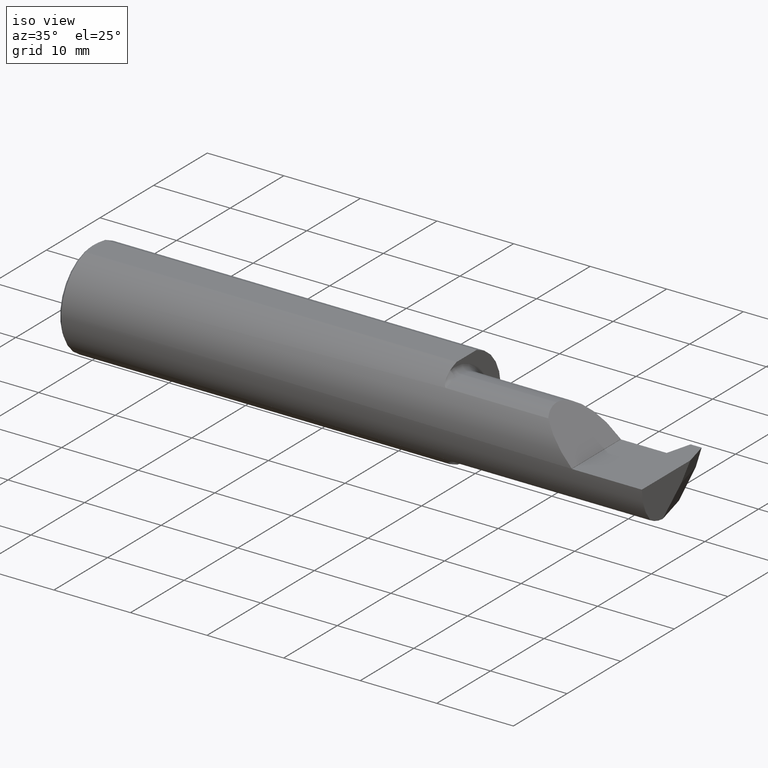
[diagram: clean part render]
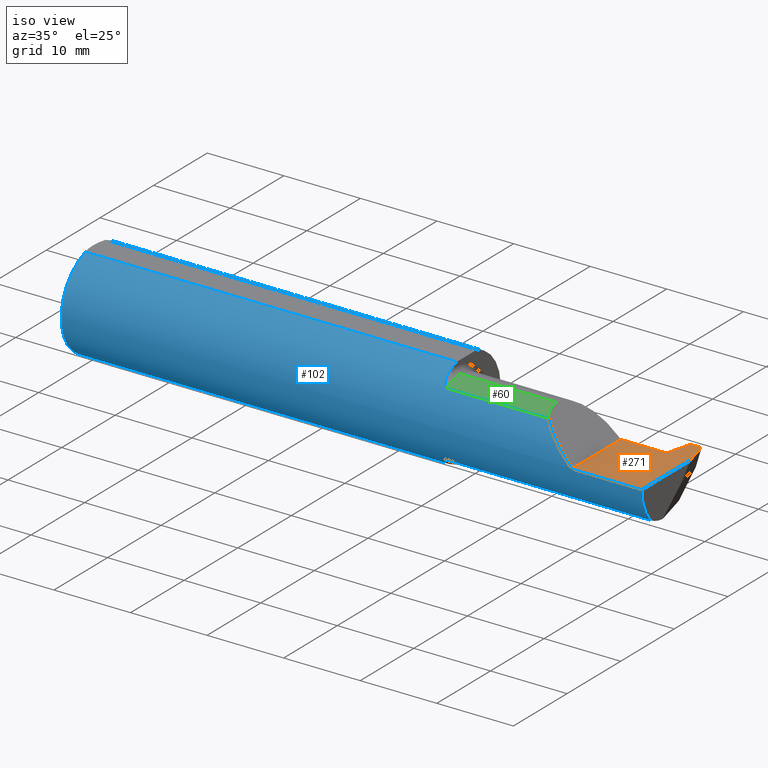
[diagram: same view with three faces highlighted in distinct colors, each labeled with its STEP entity id]
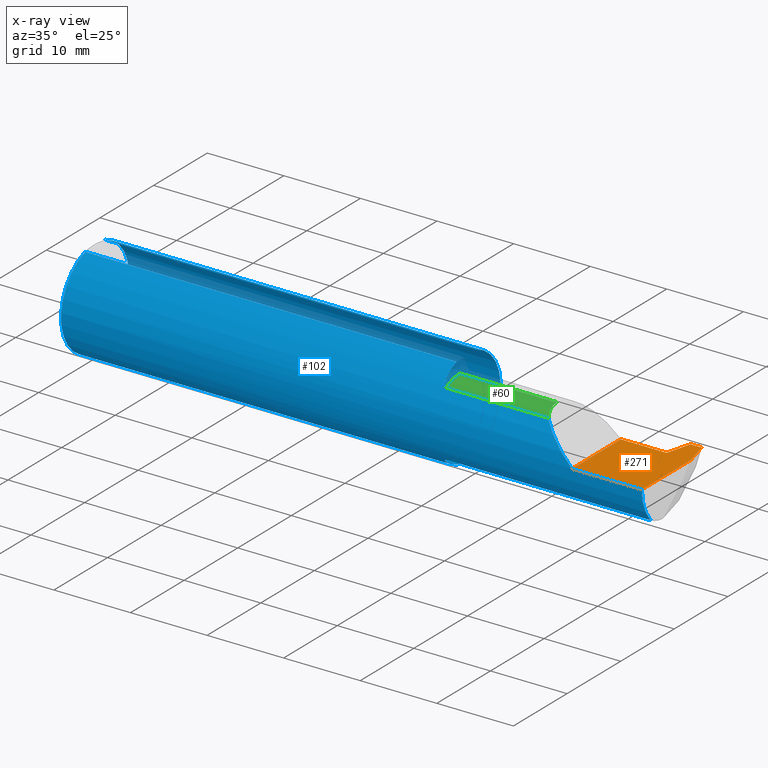
[diagram: x-ray of the same camera — body ghosted, the three highlighted faces saturated]
A machine part, iso view with three faces highlighted in distinct colors.
The next image is the same camera in x-ray (body ghosted, the three faces saturated) — at least one of them is partly hidden behind the body in this view.
Their STEP definitions:

[orange] entity #271 — the highlighted planar face has unit normal (-0, 0, -1).
#2 = LINE ( 'NONE', #690, #64 ) ;
#22 = DIRECTION ( 'NONE',  ( 1.000000000000000000, 8.537024980200913523E-16, -0.000000000000000000 ) ) ;
#26 = CARTESIAN_POINT ( 'NONE',  ( 3.000000000000000444, 0.2999999999999999889, -6.123031769111886291E-17 ) ) ;
#27 = ORIENTED_EDGE ( 'NONE', *, *, #268, .F. ) ;
#40 = VERTEX_POINT ( 'NONE', #908 ) ;
#41 = CARTESIAN_POINT ( 'NONE',  ( 2.909103411012277540, 0.2381499999999800443, -6.123031769111886291E-17 ) ) ;
#64 = VECTOR ( 'NONE', #313, 39.37007874015748143 ) ;
#89 = EDGE_CURVE ( 'NONE', #326, #483, #131, .T. ) ;
#94 = AXIS2_PLACEMENT_3D ( 'NONE', #504, #425, #805 ) ;
#116 = VECTOR ( 'NONE', #809, 39.37007874015748143 ) ;
#126 = CARTESIAN_POINT ( 'NONE',  ( 2.640000000000000124, 0.1101499999999999563, -6.123031769111885058E-17 ) ) ;
#131 = LINE ( 'NONE', #285, #971 ) ;
#168 = VERTEX_POINT ( 'NONE', #548 ) ;
#177 = ORIENTED_EDGE ( 'NONE', *, *, #812, .T. ) ;
#207 = LINE ( 'NONE', #676, #116 ) ;
#243 = EDGE_CURVE ( 'NONE', #168, #326, #2, .T. ) ;
#265 = DIRECTION ( 'NONE',  ( 1.000000000000000000, 0.000000000000000000, 0.000000000000000000 ) ) ;
#268 = EDGE_CURVE ( 'NONE', #695, #40, #341, .T. ) ;
#271 = ADVANCED_FACE ( 'NONE', ( #946 ), #883, .F. ) ;
#279 = CARTESIAN_POINT ( 'NONE',  ( 2.640000000000000124, -0.2498499999999999610, -6.123031769111885058E-17 ) ) ;
#285 = CARTESIAN_POINT ( 'NONE',  ( 2.640000000000000124, 0.2999999999999999889, -6.123031769111886291E-17 ) ) ;
#298 = DIRECTION ( 'NONE',  ( 0.2503800040544357230, -0.9681476403781091866, 0.000000000000000000 ) ) ;
#303 = ORIENTED_EDGE ( 'NONE', *, *, #89, .F. ) ;
#313 = DIRECTION ( 'NONE',  ( -1.000000000000000000, -0.000000000000000000, -0.000000000000000000 ) ) ;
#326 = VERTEX_POINT ( 'NONE', #279 ) ;
#336 = VECTOR ( 'NONE', #265, 39.37007874015748143 ) ;
#341 = LINE ( 'NONE', #787, #448 ) ;
#342 = EDGE_CURVE ( 'NONE', #650, #344, #585, .T. ) ;
#344 = VERTEX_POINT ( 'NONE', #41 ) ;
#345 = EDGE_CURVE ( 'NONE', #483, #695, #406, .T. ) ;
#406 = LINE ( 'NONE', #708, #336 ) ;
#425 = DIRECTION ( 'NONE',  ( -0.000000000000000000, 0.000000000000000000, -1.000000000000000000 ) ) ;
#445 = EDGE_CURVE ( 'NONE', #40, #344, #207, .T. ) ;
#448 = VECTOR ( 'NONE', #22, 39.37007874015748143 ) ;
#457 = EDGE_LOOP ( 'NONE', ( #871, #477, #27, #614, #303, #811, #177, #652 ) ) ;
#477 = ORIENTED_EDGE ( 'NONE', *, *, #445, .F. ) ;
#483 = VERTEX_POINT ( 'NONE', #126 ) ;
#487 = EDGE_CURVE ( 'NONE', #650, #510, #672, .T. ) ;
#504 = CARTESIAN_POINT ( 'NONE',  ( 2.640000000000000124, 0.2999999999999999889, -6.123031769111886291E-17 ) ) ;
#510 = VERTEX_POINT ( 'NONE', #962 ) ;
#548 = CARTESIAN_POINT ( 'NONE',  ( 3.000000000000000444, -0.2498499999999999055, -6.123031769111886291E-17 ) ) ;
#585 = LINE ( 'NONE', #951, #687 ) ;
#614 = ORIENTED_EDGE ( 'NONE', *, *, #345, .F. ) ;
#650 = VERTEX_POINT ( 'NONE', #793 ) ;
#652 = ORIENTED_EDGE ( 'NONE', *, *, #487, .F. ) ;
#664 = CARTESIAN_POINT ( 'NONE',  ( 2.963000000000000078, 0.2501499999999999280, 0.000000000000000000 ) ) ;
#672 = LINE ( 'NONE', #664, #764 ) ;
#676 = CARTESIAN_POINT ( 'NONE',  ( 2.912206822024553166, 0.2501499999999999280, 0.000000000000000000 ) ) ;
#687 = VECTOR ( 'NONE', #799, 39.37007874015748143 ) ;
#689 = VECTOR ( 'NONE', #873, 39.37007874015748143 ) ;
#690 = CARTESIAN_POINT ( 'NONE',  ( 3.000000000000000444, -0.2498499999999999610, -6.123031769111886291E-17 ) ) ;
#695 = VERTEX_POINT ( 'NONE', #934 ) ;
#702 = LINE ( 'NONE', #26, #689 ) ;
#708 = CARTESIAN_POINT ( 'NONE',  ( 1.925000000000000266, 0.1101499999999999840, -6.123031769111886291E-17 ) ) ;
#764 = VECTOR ( 'NONE', #298, 39.37007874015748143 ) ;
#787 = CARTESIAN_POINT ( 'NONE',  ( 2.876000360214729490, 0.1101499999999999702, 0.000000000000000000 ) ) ;
#793 = CARTESIAN_POINT ( 'NONE',  ( 2.966103411012276148, 0.2381499999999774630, 0.000000000000000000 ) ) ;
#799 = DIRECTION ( 'NONE',  ( -1.000000000000000000, 4.572984814418714441E-14, 0.000000000000000000 ) ) ;
#805 = DIRECTION ( 'NONE',  ( -1.000000000000000000, 0.000000000000000000, 0.000000000000000000 ) ) ;
#809 = DIRECTION ( 'NONE',  ( 0.2503800040544345573, 0.9681476403781096307, -0.000000000000000000 ) ) ;
#811 = ORIENTED_EDGE ( 'NONE', *, *, #243, .F. ) ;
#812 = EDGE_CURVE ( 'NONE', #168, #510, #702, .T. ) ;
#871 = ORIENTED_EDGE ( 'NONE', *, *, #342, .T. ) ;
#873 = DIRECTION ( 'NONE',  ( -0.000000000000000000, 1.000000000000000000, -0.000000000000000000 ) ) ;
#883 = PLANE ( 'NONE',  #94 ) ;
#899 = DIRECTION ( 'NONE',  ( -0.000000000000000000, 1.000000000000000000, -0.000000000000000000 ) ) ;
#908 = CARTESIAN_POINT ( 'NONE',  ( 2.876000360214729490, 0.1101499999999999702, 0.000000000000000000 ) ) ;
#934 = CARTESIAN_POINT ( 'NONE',  ( 2.856000360214729472, 0.1101499999999999563, 0.000000000000000000 ) ) ;
#946 = FACE_OUTER_BOUND ( 'NONE', #457, .T. ) ;
#951 = CARTESIAN_POINT ( 'NONE',  ( 2.639999999999997460, 0.2381499999999923400, -6.123031769111886291E-17 ) ) ;
#962 = CARTESIAN_POINT ( 'NONE',  ( 3.000000000000000444, 0.1070816154887422461, 0.000000000000000000 ) ) ;
#971 = VECTOR ( 'NONE', #899, 39.37007874015748143 ) ;

[blue] entity #102 — the highlighted cylindrical surface (partial cylindrical patch) has radius 6.3462 mm, axis along (-1, -0, -0).
#2 = LINE ( 'NONE', #690, #64 ) ;
#5 = CARTESIAN_POINT ( 'NONE',  ( 1.946370180837897479, -0.1857053627698156684, -0.1671515984899562823 ) ) ;
#8 = CARTESIAN_POINT ( 'NONE',  ( 2.640000000000000124, -0.2498463527850666721, 0.001349999999999153743 ) ) ;
#9 = VERTEX_POINT ( 'NONE', #751 ) ;
#10 = CARTESIAN_POINT ( 'NONE',  ( 1.938813695058261288, -0.1803944576976549974, -0.1728909059399327819 ) ) ;
#39 = CARTESIAN_POINT ( 'NONE',  ( 3.000000000000000444, 0.000000000000000000, 0.000000000000000000 ) ) ;
#50 = CIRCLE ( 'NONE', #194, 0.2498499999999999888 ) ;
#52 = CARTESIAN_POINT ( 'NONE',  ( 1.925000000000000266, -0.1250709781968178946, -0.2162921009026707309 ) ) ;
#62 = DIRECTION ( 'NONE',  ( -1.000000000000000000, -0.000000000000000000, -0.000000000000000000 ) ) ;
#64 = VECTOR ( 'NONE', #313, 39.37007874015748143 ) ;
#70 = B_SPLINE_CURVE_WITH_KNOTS ( 'NONE', 3,
 ( #852, #930, #165, #838, #233, #927, #10, #245, #318, #5, #157, #922 ),
 .UNSPECIFIED., .F., .F.,
 ( 4, 2, 2, 2, 2, 4 ),
 ( 0.000000000000000000, 0.001097037258504890162, 0.001645555887757337412, 0.001919815202383554856, 0.002056944859696663037, 0.002194074517009771217 ),
 .UNSPECIFIED. ) ;
#83 = CIRCLE ( 'NONE', #734, 0.2498499999999999888 ) ;
#84 = CARTESIAN_POINT ( 'NONE',  ( 3.000000000000000444, -0.07331916529803135518, 0.2388499999999998957 ) ) ;
#91 = ORIENTED_EDGE ( 'NONE', *, *, #840, .F. ) ;
#93 = CARTESIAN_POINT ( 'NONE',  ( 2.578309325945297381, -0.2495130182814990771, 0.06304067405470248353 ) ) ;
#100 = CARTESIAN_POINT ( 'NONE',  ( 3.000000000000000444, -0.1862082793164407113, -0.1665878123213411777 ) ) ;
#102 = ADVANCED_FACE ( 'NONE', ( #748 ), #377, .T. ) ;
#107 = DIRECTION ( 'NONE',  ( -1.000000000000000000, -0.000000000000000000, -0.000000000000000000 ) ) ;
#108 = ORIENTED_EDGE ( 'NONE', *, *, #693, .T. ) ;
#120 = CARTESIAN_POINT ( 'NONE',  ( 2.400000000000000355, -0.1862082793164408501, -0.1665878123213411499 ) ) ;
#141 = VECTOR ( 'NONE', #178, 39.37007874015748143 ) ;
#155 = CIRCLE ( 'NONE', #579, 0.2498499999999999888 ) ;
#157 = CARTESIAN_POINT ( 'NONE',  ( 1.948145221810430261, -0.1862082793164407390, -0.1665878123213412054 ) ) ;
#160 = EDGE_CURVE ( 'NONE', #502, #310, #70, .T. ) ;
#165 = CARTESIAN_POINT ( 'NONE',  ( 1.926272908852844301, -0.1494261110292506300, -0.2007428102137029102 ) ) ;
#168 = VERTEX_POINT ( 'NONE', #548 ) ;
#178 = DIRECTION ( 'NONE',  ( -1.000000000000000000, -0.000000000000000000, -0.000000000000000000 ) ) ;
#184 = DIRECTION ( 'NONE',  ( 0.000000000000000000, 0.000000000000000000, -1.000000000000000000 ) ) ;
#185 = CARTESIAN_POINT ( 'NONE',  ( 1.948136090905396411, -0.1862082793164408501, 0.1665878123213412054 ) ) ;
#194 = AXIS2_PLACEMENT_3D ( 'NONE', #39, #929, #856 ) ;
#196 = EDGE_CURVE ( 'NONE', #242, #334, #366, .T. ) ;
#204 = DIRECTION ( 'NONE',  ( 1.000000000000000000, 0.000000000000000000, 0.000000000000000000 ) ) ;
#212 = DIRECTION ( 'NONE',  ( 1.000000000000000000, 0.000000000000000000, 0.000000000000000000 ) ) ;
#213 = CARTESIAN_POINT ( 'NONE',  ( 1.950000000000000178, -0.1862082793164408501, 0.1665878123213411499 ) ) ;
#214 = CARTESIAN_POINT ( 'NONE',  ( 3.000000000000000444, 0.000000000000000000, 0.000000000000000000 ) ) ;
#218 = DIRECTION ( 'NONE',  ( 1.000000000000000000, 0.000000000000000000, 0.000000000000000000 ) ) ;
#226 = EDGE_CURVE ( 'NONE', #444, #781, #386, .T. ) ;
#233 = CARTESIAN_POINT ( 'NONE',  ( 1.932791519316737761, -0.1709869259022376575, -0.1822998300512940761 ) ) ;
#242 = VERTEX_POINT ( 'NONE', #390 ) ;
#243 = EDGE_CURVE ( 'NONE', #168, #326, #2, .T. ) ;
#245 = CARTESIAN_POINT ( 'NONE',  ( 1.942154182526138362, -0.1833665275214914070, -0.1697169404947845295 ) ) ;
#248 = ORIENTED_EDGE ( 'NONE', *, *, #317, .F. ) ;
#251 = VERTEX_POINT ( 'NONE', #843 ) ;
#256 = CARTESIAN_POINT ( 'NONE',  ( 1.926293471060601004, -0.1495312910450006805, 0.2006610765018840559 ) ) ;
#279 = CARTESIAN_POINT ( 'NONE',  ( 2.640000000000000124, -0.2498499999999999610, -6.123031769111885058E-17 ) ) ;
#280 = DIRECTION ( 'NONE',  ( 1.000000000000000000, -0.000000000000000000, -0.000000000000000000 ) ) ;
#281 = ORIENTED_EDGE ( 'NONE', *, *, #632, .T. ) ;
#284 = CARTESIAN_POINT ( 'NONE',  ( 1.925000000000000266, -0.1250709781968178946, 0.2162921009026707309 ) ) ;
#288 = CARTESIAN_POINT ( 'NONE',  ( 2.400000000000000355, -0.1862082793164408501, 0.1665878123213411499 ) ) ;
#310 = VERTEX_POINT ( 'NONE', #490 ) ;
#313 = DIRECTION ( 'NONE',  ( -1.000000000000000000, -0.000000000000000000, -0.000000000000000000 ) ) ;
#317 = EDGE_CURVE ( 'NONE', #444, #519, #155, .T. ) ;
#318 = CARTESIAN_POINT ( 'NONE',  ( 1.943416617075090169, -0.1842851675631634878, -0.1687160800144227035 ) ) ;
#321 = AXIS2_PLACEMENT_3D ( 'NONE', #446, #511, #815 ) ;
#323 = CARTESIAN_POINT ( 'NONE',  ( 2.474762187678658965, -0.1862082793164407668, 0.1665878123213410944 ) ) ;
#326 = VERTEX_POINT ( 'NONE', #279 ) ;
#333 = CARTESIAN_POINT ( 'NONE',  ( 2.640000000000000124, 0.000000000000000000, 0.000000000000000000 ) ) ;
#334 = VERTEX_POINT ( 'NONE', #498 ) ;
#339 = ORIENTED_EDGE ( 'NONE', *, *, #226, .T. ) ;
#349 = LINE ( 'NONE', #120, #141 ) ;
#350 = CARTESIAN_POINT ( 'NONE',  ( 1.925000000000000711, -0.1376662443218121257, 0.2090088841401171182 ) ) ;
#355 = ORIENTED_EDGE ( 'NONE', *, *, #160, .T. ) ;
#361 = EDGE_CURVE ( 'NONE', #682, #310, #349, .T. ) ;
#365 = VERTEX_POINT ( 'NONE', #933 ) ;
#366 =( BOUNDED_CURVE ( )  B_SPLINE_CURVE ( 3, ( #8, #93, #772, #323 ),
 .UNSPECIFIED., .F., .F. ) 
 B_SPLINE_CURVE_WITH_KNOTS ( ( 4, 4 ),
 ( 4.717792248621494267, 5.442230189998084278 ),
 .UNSPECIFIED. ) 
 CURVE ( )  GEOMETRIC_REPRESENTATION_ITEM ( )  RATIONAL_B_SPLINE_CURVE ( ( 1.000000000000000000, 0.9567418893490838849, 0.9567418893490838849, 1.000000000000000000 ) ) 
 REPRESENTATION_ITEM ( '' )  );
#370 = B_SPLINE_CURVE_WITH_KNOTS ( 'NONE', 3,
 ( #407, #185, #709, #654, #491, #485, #728, #783, #501, #256, #350, #859 ),
 .UNSPECIFIED., .F., .F.,
 ( 4, 2, 2, 2, 2, 4 ),
 ( 0.000000000000000000, 0.0001393948641635522000, 0.0002787897283271044001, 0.0005575794566542089086, 0.001115158913308419552, 0.002230317826616845175 ),
 .UNSPECIFIED. ) ;
#377 = CYLINDRICAL_SURFACE ( 'NONE', #625, 0.2498499999999999888 ) ;
#386 = LINE ( 'NONE', #84, #496 ) ;
#390 = CARTESIAN_POINT ( 'NONE',  ( 2.640000000000000124, -0.2498463527850666721, 0.001349999999999153743 ) ) ;
#407 = CARTESIAN_POINT ( 'NONE',  ( 1.950000000000000178, -0.1862082793164408501, 0.1665878123213411499 ) ) ;
#417 = CARTESIAN_POINT ( 'NONE',  ( 1.925000000000000266, 0.000000000000000000, 0.000000000000000000 ) ) ;
#424 = ORIENTED_EDGE ( 'NONE', *, *, #196, .T. ) ;
#444 = VERTEX_POINT ( 'NONE', #747 ) ;
#446 = CARTESIAN_POINT ( 'NONE',  ( 0.01500000000000188856, 0.000000000000000000, 0.000000000000000000 ) ) ;
#463 = EDGE_CURVE ( 'NONE', #9, #365, #605, .T. ) ;
#467 = VERTEX_POINT ( 'NONE', #213 ) ;
#480 = DIRECTION ( 'NONE',  ( 0.000000000000000000, 0.000000000000000000, -1.000000000000000000 ) ) ;
#485 = CARTESIAN_POINT ( 'NONE',  ( 1.938795016024909668, -0.1803726541953343254, 0.1729137444693446546 ) ) ;
#490 = CARTESIAN_POINT ( 'NONE',  ( 1.950000000000000178, -0.1862082793164408501, -0.1665878123213411499 ) ) ;
#491 = CARTESIAN_POINT ( 'NONE',  ( 1.942133466839170097, -0.1833506539713362360, 0.1697341124089706277 ) ) ;
#496 = VECTOR ( 'NONE', #686, 39.37007874015748143 ) ;
#498 = CARTESIAN_POINT ( 'NONE',  ( 2.474762187678658965, -0.1862082793164407668, 0.1665878123213410944 ) ) ;
#501 = CARTESIAN_POINT ( 'NONE',  ( 1.930845932937570897, -0.1657762713748382466, 0.1870644631675826286 ) ) ;
#502 = VERTEX_POINT ( 'NONE', #52 ) ;
#511 = DIRECTION ( 'NONE',  ( 1.000000000000000000, -0.000000000000000000, -0.000000000000000000 ) ) ;
#515 = EDGE_LOOP ( 'NONE', ( #617, #91, #773, #108, #424, #662, #281, #248, #339, #725, #678, #641, #931, #355 ) ) ;
#519 = VERTEX_POINT ( 'NONE', #284 ) ;
#520 = EDGE_CURVE ( 'NONE', #781, #251, #795, .T. ) ;
#546 = EDGE_CURVE ( 'NONE', #467, #334, #592, .T. ) ;
#548 = CARTESIAN_POINT ( 'NONE',  ( 3.000000000000000444, -0.2498499999999999055, -6.123031769111886291E-17 ) ) ;
#579 = AXIS2_PLACEMENT_3D ( 'NONE', #417, #726, #184 ) ;
#592 = LINE ( 'NONE', #288, #608 ) ;
#593 = CIRCLE ( 'NONE', #701, 0.2498499999999999888 ) ;
#605 = LINE ( 'NONE', #974, #623 ) ;
#608 = VECTOR ( 'NONE', #218, 39.37007874015748143 ) ;
#617 = ORIENTED_EDGE ( 'NONE', *, *, #361, .F. ) ;
#623 = VECTOR ( 'NONE', #204, 39.37007874015748143 ) ;
#625 = AXIS2_PLACEMENT_3D ( 'NONE', #214, #62, #831 ) ;
#632 = EDGE_CURVE ( 'NONE', #467, #519, #370, .T. ) ;
#635 = DIRECTION ( 'NONE',  ( 0.000000000000000000, 0.000000000000000000, 1.000000000000000000 ) ) ;
#641 = ORIENTED_EDGE ( 'NONE', *, *, #463, .T. ) ;
#654 = CARTESIAN_POINT ( 'NONE',  ( 1.943393762476562703, -0.1842731779358249555, 0.1687292568213746013 ) ) ;
#662 = ORIENTED_EDGE ( 'NONE', *, *, #546, .F. ) ;
#671 = EDGE_CURVE ( 'NONE', #251, #9, #83, .T. ) ;
#678 = ORIENTED_EDGE ( 'NONE', *, *, #671, .T. ) ;
#682 = VERTEX_POINT ( 'NONE', #100 ) ;
#686 = DIRECTION ( 'NONE',  ( -1.000000000000000000, -0.000000000000000000, -0.000000000000000000 ) ) ;
#690 = CARTESIAN_POINT ( 'NONE',  ( 3.000000000000000444, -0.2498499999999999610, -6.123031769111886291E-17 ) ) ;
#693 = EDGE_CURVE ( 'NONE', #326, #242, #593, .T. ) ;
#701 = AXIS2_PLACEMENT_3D ( 'NONE', #333, #107, #635 ) ;
#709 = CARTESIAN_POINT ( 'NONE',  ( 1.946379501438356918, -0.1857108401697049604, 0.1671455953877453160 ) ) ;
#712 = CARTESIAN_POINT ( 'NONE',  ( 0.01500000000000188509, -0.07331916529803116089, 0.2388499999999999790 ) ) ;
#725 = ORIENTED_EDGE ( 'NONE', *, *, #520, .T. ) ;
#726 = DIRECTION ( 'NONE',  ( 1.000000000000000000, 0.000000000000000000, 0.000000000000000000 ) ) ;
#728 = CARTESIAN_POINT ( 'NONE',  ( 1.937118484253501638, -0.1780926133871663652, 0.1752686114729513633 ) ) ;
#734 = AXIS2_PLACEMENT_3D ( 'NONE', #959, #280, #480 ) ;
#740 = DIRECTION ( 'NONE',  ( 0.000000000000000000, 0.000000000000000000, -1.000000000000000000 ) ) ;
#747 = CARTESIAN_POINT ( 'NONE',  ( 1.925000000000000266, -0.07331916529803114702, 0.2388499999999999790 ) ) ;
#748 = FACE_OUTER_BOUND ( 'NONE', #515, .T. ) ;
#751 = CARTESIAN_POINT ( 'NONE',  ( 0.01500000000000188856, 0.07331916529803116089, 0.2388499999999999790 ) ) ;
#752 = AXIS2_PLACEMENT_3D ( 'NONE', #967, #212, #740 ) ;
#772 = CARTESIAN_POINT ( 'NONE',  ( 2.520739702009155536, -0.2273412168872478156, 0.1206102979908444811 ) ) ;
#773 = ORIENTED_EDGE ( 'NONE', *, *, #243, .T. ) ;
#781 = VERTEX_POINT ( 'NONE', #712 ) ;
#783 = CARTESIAN_POINT ( 'NONE',  ( 1.932805179170606014, -0.1710060601368943445, 0.1822803344833587302 ) ) ;
#795 = CIRCLE ( 'NONE', #321, 0.2498499999999999888 ) ;
#815 = DIRECTION ( 'NONE',  ( 0.000000000000000000, 0.000000000000000000, -1.000000000000000000 ) ) ;
#831 = DIRECTION ( 'NONE',  ( 0.000000000000000000, 0.000000000000000000, 1.000000000000000000 ) ) ;
#832 = CIRCLE ( 'NONE', #752, 0.2498499999999999888 ) ;
#838 = CARTESIAN_POINT ( 'NONE',  ( 1.930828878631586143, -0.1657311752962013496, -0.1871053287252796016 ) ) ;
#840 = EDGE_CURVE ( 'NONE', #168, #682, #50, .T. ) ;
#843 = CARTESIAN_POINT ( 'NONE',  ( 0.01500000000000188856, 0.000000000000000000, -0.2498499999999999888 ) ) ;
#852 = CARTESIAN_POINT ( 'NONE',  ( 1.925000000000000266, -0.1250709781968178946, -0.2162921009026707309 ) ) ;
#856 = DIRECTION ( 'NONE',  ( 0.000000000000000000, 0.000000000000000000, -1.000000000000000000 ) ) ;
#859 = CARTESIAN_POINT ( 'NONE',  ( 1.925000000000000266, -0.1250709781968178946, 0.2162921009026707309 ) ) ;
#922 = CARTESIAN_POINT ( 'NONE',  ( 1.950000000000000178, -0.1862082793164408501, -0.1665878123213411499 ) ) ;
#927 = CARTESIAN_POINT ( 'NONE',  ( 1.937135037345902200, -0.1781181496382315821, -0.1752430622336076105 ) ) ;
#929 = DIRECTION ( 'NONE',  ( 1.000000000000000000, 0.000000000000000000, 0.000000000000000000 ) ) ;
#930 = CARTESIAN_POINT ( 'NONE',  ( 1.925000000000000044, -0.1376885313855323867, -0.2089959966382203826 ) ) ;
#931 = ORIENTED_EDGE ( 'NONE', *, *, #981, .F. ) ;
#933 = CARTESIAN_POINT ( 'NONE',  ( 1.925000000000000266, 0.07331916529803135518, 0.2388499999999999790 ) ) ;
#959 = CARTESIAN_POINT ( 'NONE',  ( 0.01500000000000188856, 0.000000000000000000, 0.000000000000000000 ) ) ;
#967 = CARTESIAN_POINT ( 'NONE',  ( 1.925000000000000266, 0.000000000000000000, 0.000000000000000000 ) ) ;
#974 = CARTESIAN_POINT ( 'NONE',  ( 3.000000000000000444, 0.07331916529803135518, 0.2388499999999998957 ) ) ;
#981 = EDGE_CURVE ( 'NONE', #502, #365, #832, .T. ) ;

[green] entity #60 — the highlighted cylindrical surface (partial cylindrical patch) has radius 4.953 mm, axis along (-1, -0, -0).
#16 = CARTESIAN_POINT ( 'NONE',  ( 1.925000000000000266, -0.08485000000000002263, 0.1950000000000000067 ) ) ;
#48 = EDGE_CURVE ( 'NONE', #867, #334, #86, .T. ) ;
#60 = ADVANCED_FACE ( 'NONE', ( #524 ), #756, .T. ) ;
#86 =( BOUNDED_CURVE ( )  B_SPLINE_CURVE ( 3, ( #290, #443, #219, #138 ),
 .UNSPECIFIED., .F., .F. ) 
 B_SPLINE_CURVE_WITH_KNOTS ( ( 4, 4 ),
 ( 0.000000000000000000, 0.5466004890170860220 ),
 .UNSPECIFIED. ) 
 CURVE ( )  GEOMETRIC_REPRESENTATION_ITEM ( )  RATIONAL_B_SPLINE_CURVE ( ( 1.000000000000000000, 0.9752569136661353166, 0.9752569136661353166, 1.000000000000000000 ) ) 
 REPRESENTATION_ITEM ( '' )  );
#134 = CARTESIAN_POINT ( 'NONE',  ( 1.925000000000000266, -0.08485000000000002263, 0.000000000000000000 ) ) ;
#138 = CARTESIAN_POINT ( 'NONE',  ( 2.474762187678658965, -0.1862082793164407668, 0.1665878123213410944 ) ) ;
#213 = CARTESIAN_POINT ( 'NONE',  ( 1.950000000000000178, -0.1862082793164408501, 0.1665878123213411499 ) ) ;
#218 = DIRECTION ( 'NONE',  ( 1.000000000000000000, 0.000000000000000000, 0.000000000000000000 ) ) ;
#219 = CARTESIAN_POINT ( 'NONE',  ( 2.456061009574511012, -0.1554718819623029658, 0.1852889904254893250 ) ) ;
#224 = DIRECTION ( 'NONE',  ( 0.000000000000000000, 0.000000000000000000, 1.000000000000000000 ) ) ;
#255 = CIRCLE ( 'NONE', #968, 0.1950000000000000067 ) ;
#288 = CARTESIAN_POINT ( 'NONE',  ( 2.400000000000000355, -0.1862082793164408501, 0.1665878123213411499 ) ) ;
#290 = CARTESIAN_POINT ( 'NONE',  ( 2.446350000000000691, -0.08485000000000002263, 0.1950000000000000067 ) ) ;
#334 = VERTEX_POINT ( 'NONE', #498 ) ;
#354 = CARTESIAN_POINT ( 'NONE',  ( 1.950000000000000178, -0.08485000000000002263, 0.1950000000000000067 ) ) ;
#369 = DIRECTION ( 'NONE',  ( -1.000000000000000000, -0.000000000000000000, -0.000000000000000000 ) ) ;
#404 = DIRECTION ( 'NONE',  ( -1.000000000000000000, -0.000000000000000000, -0.000000000000000000 ) ) ;
#433 = DIRECTION ( 'NONE',  ( 1.000000000000000000, 0.000000000000000000, 0.000000000000000000 ) ) ;
#443 = CARTESIAN_POINT ( 'NONE',  ( 2.446349999999999802, -0.1208286073214975276, 0.1950000000000000344 ) ) ;
#467 = VERTEX_POINT ( 'NONE', #213 ) ;
#494 = EDGE_CURVE ( 'NONE', #609, #467, #255, .T. ) ;
#498 = CARTESIAN_POINT ( 'NONE',  ( 2.474762187678658965, -0.1862082793164407668, 0.1665878123213410944 ) ) ;
#524 = FACE_OUTER_BOUND ( 'NONE', #545, .T. ) ;
#529 = AXIS2_PLACEMENT_3D ( 'NONE', #134, #369, #224 ) ;
#545 = EDGE_LOOP ( 'NONE', ( #564, #857, #823, #723 ) ) ;
#546 = EDGE_CURVE ( 'NONE', #467, #334, #592, .T. ) ;
#563 = CARTESIAN_POINT ( 'NONE',  ( 2.446350000000000691, -0.08485000000000002263, 0.1950000000000000067 ) ) ;
#564 = ORIENTED_EDGE ( 'NONE', *, *, #48, .F. ) ;
#592 = LINE ( 'NONE', #288, #608 ) ;
#597 = DIRECTION ( 'NONE',  ( 0.000000000000000000, 0.000000000000000000, -1.000000000000000000 ) ) ;
#601 = CARTESIAN_POINT ( 'NONE',  ( 1.950000000000000178, -0.08485000000000002263, 0.000000000000000000 ) ) ;
#608 = VECTOR ( 'NONE', #218, 39.37007874015748143 ) ;
#609 = VERTEX_POINT ( 'NONE', #354 ) ;
#646 = LINE ( 'NONE', #16, #766 ) ;
#723 = ORIENTED_EDGE ( 'NONE', *, *, #546, .T. ) ;
#739 = EDGE_CURVE ( 'NONE', #867, #609, #646, .T. ) ;
#756 = CYLINDRICAL_SURFACE ( 'NONE', #529, 0.1950000000000000067 ) ;
#766 = VECTOR ( 'NONE', #404, 39.37007874015748143 ) ;
#823 = ORIENTED_EDGE ( 'NONE', *, *, #494, .T. ) ;
#857 = ORIENTED_EDGE ( 'NONE', *, *, #739, .T. ) ;
#867 = VERTEX_POINT ( 'NONE', #563 ) ;
#968 = AXIS2_PLACEMENT_3D ( 'NONE', #601, #433, #597 ) ;